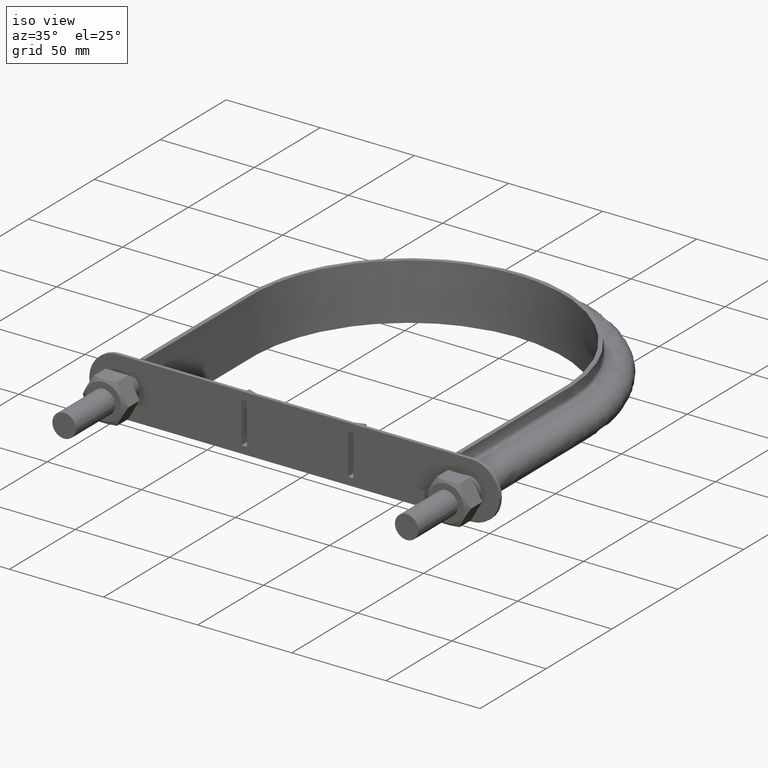
[diagram: clean part render]
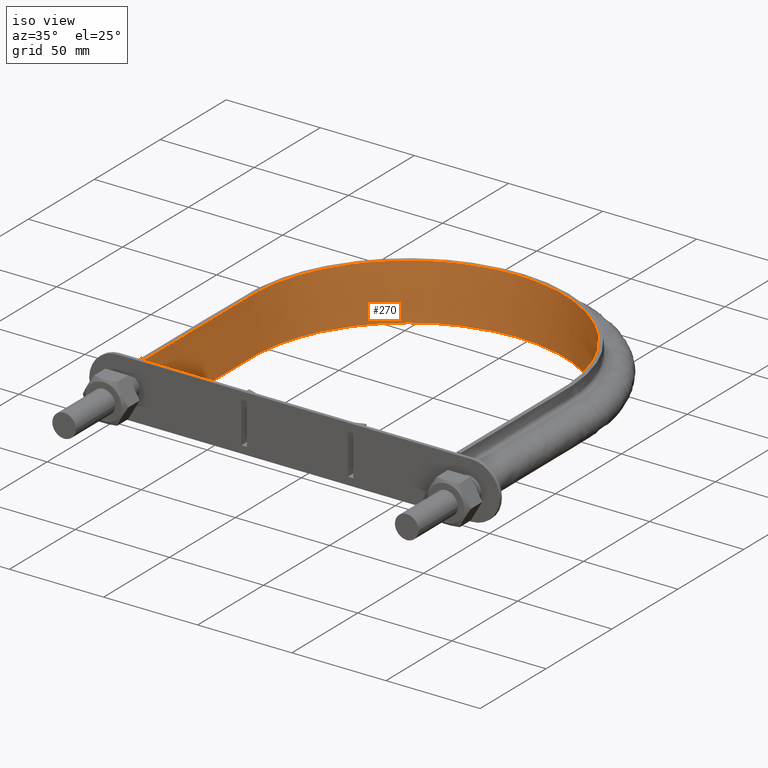
[diagram: same view with one face highlighted and labeled with its STEP entity id]
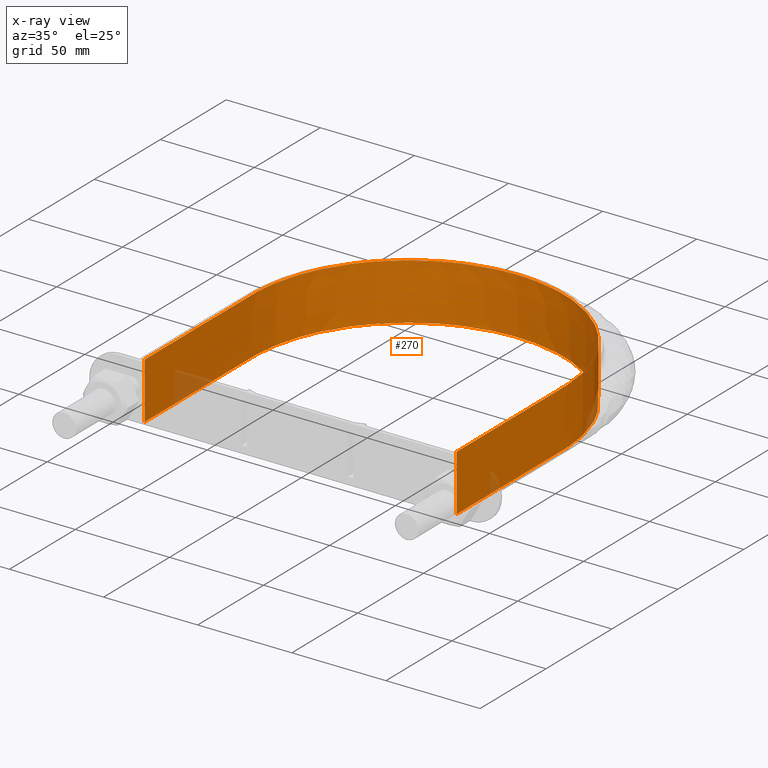
[diagram: x-ray of the same camera — body ghosted, the highlighted face saturated]
A machine part, iso view. The second image highlights one B-rep face of the part: STEP entity #270.
The next image is the same camera in x-ray: the body ghosted, the highlighted face saturated — about 3% of this face is hidden behind the body in this view.
In plain terms, the highlighted face is a SurfaceOfExtrusion surface.
Its self-contained STEP definition (entity closure, byte-faithful):
#270 = ADVANCED_FACE( '', ( #353 ), #354, .T. );
#353 = FACE_OUTER_BOUND( '', #540, .T. );
#354 = SURFACE_OF_LINEAR_EXTRUSION( '', #541, #542 );
#540 = EDGE_LOOP( '', ( #1641, #1642, #1643, #1644 ) );
#541 = B_SPLINE_CURVE_WITH_KNOTS( '', 3, ( #1645, #1646, #1647, #1648, #1649, #1650, #1651, #1652, #1653, #1654, #1655, #1656, #1657, #1658, #1659, #1660, #1661 ), .UNSPECIFIED., .F., .F., ( 4, 3, 1, 1, 1, 1, 1, 1, 1, 3, 4 ), ( -10.0000000000000, -9.00000000000000, -8.00000000000000, -7.00000000000000, -6.00000000000000, -5.00000000000000, -4.00000000000000, -3.00000000000000, -2.00000000000000, -1.00000000000000, 0.000000000000000 ), .UNSPECIFIED. );
#542 = VECTOR( '', #1662, 1000.00000000000 );
#1641 = ORIENTED_EDGE( '', *, *, #2207, .F. );
#1642 = ORIENTED_EDGE( '', *, *, #2196, .F. );
#1643 = ORIENTED_EDGE( '', *, *, #2200, .T. );
#1644 = ORIENTED_EDGE( '', *, *, #2204, .T. );
#1645 = CARTESIAN_POINT( '', ( -82.8500000000000, 49.5000000000001, -278.469308654335 ) );
#1646 = CARTESIAN_POINT( '', ( -82.8500000000000, 76.7166666666667, -278.469308654335 ) );
#1647 = CARTESIAN_POINT( '', ( -82.8500000000000, 103.933333333333, -278.469308654335 ) );
#1648 = CARTESIAN_POINT( '', ( -82.8500000000000, 131.150000000000, -278.469308654335 ) );
#1649 = CARTESIAN_POINT( '', ( -82.8500000000000, 141.979512005492, -278.469308654335 ) );
#1650 = CARTESIAN_POINT( '', ( -78.5361555605724, 163.687272457852, -278.469308654335 ) );
#1651 = CARTESIAN_POINT( '', ( -60.1089711493570, 191.257212617967, -278.469308654335 ) );
#1652 = CARTESIAN_POINT( '', ( -32.5307407698323, 209.686657998112, -278.469308654335 ) );
#1653 = CARTESIAN_POINT( '', ( 5.42262588885138E-014, 216.156671000944, -278.469308654335 ) );
#1654 = CARTESIAN_POINT( '', ( 32.5307407698323, 209.686657998112, -278.469308654335 ) );
#1655 = CARTESIAN_POINT( '', ( 60.1089711493571, 191.257212617967, -278.469308654335 ) );
#1656 = CARTESIAN_POINT( '', ( 78.5361555605725, 163.687272457852, -278.469308654335 ) );
#1657 = CARTESIAN_POINT( '', ( 82.8500000000000, 141.979512005492, -278.469308654335 ) );
#1658 = CARTESIAN_POINT( '', ( 82.8500000000000, 131.150000000000, -278.469308654335 ) );
#1659 = CARTESIAN_POINT( '', ( 82.8500000000000, 103.933333333333, -278.469308654335 ) );
#1660 = CARTESIAN_POINT( '', ( 82.8500000000000, 76.7166666666667, -278.469308654335 ) );
#1661 = CARTESIAN_POINT( '', ( 82.8500000000000, 49.5000000000000, -278.469308654335 ) );
#1662 = DIRECTION( '', ( 0.000000000000000, 0.000000000000000, 1.00000000000000 ) );
#2196 = EDGE_CURVE( '', #2367, #2368, #2369, .T. );
#2200 = EDGE_CURVE( '', #2367, #2375, #2376, .T. );
#2204 = EDGE_CURVE( '', #2375, #2382, #2383, .T. );
#2207 = EDGE_CURVE( '', #2368, #2382, #2387, .T. );
#2367 = VERTEX_POINT( '', #2673 );
#2368 = VERTEX_POINT( '', #2674 );
#2369 = LINE( '', #2675, #2676 );
#2375 = VERTEX_POINT( '', #2714 );
#2376 = B_SPLINE_CURVE_WITH_KNOTS( '', 3, ( #2715, #2716, #2717, #2718, #2719, #2720, #2721, #2722, #2723, #2724, #2725, #2726, #2727, #2728, #2729, #2730, #2731 ), .UNSPECIFIED., .F., .F., ( 4, 3, 1, 1, 1, 1, 1, 1, 1, 3, 4 ), ( -10.0000000000000, -9.00000000000000, -8.00000000000000, -7.00000000000000, -6.00000000000000, -5.00000000000000, -4.00000000000000, -3.00000000000000, -2.00000000000000, -1.00000000000000, 0.000000000000000 ), .UNSPECIFIED. );
#2382 = VERTEX_POINT( '', #2764 );
#2383 = LINE( '', #2765, #2766 );
#2387 = B_SPLINE_CURVE_WITH_KNOTS( '', 3, ( #2801, #2802, #2803, #2804, #2805, #2806, #2807, #2808, #2809, #2810, #2811, #2812, #2813, #2814, #2815, #2816, #2817 ), .UNSPECIFIED., .F., .F., ( 4, 3, 1, 1, 1, 1, 1, 1, 1, 3, 4 ), ( -10.0000000000000, -9.00000000000000, -8.00000000000000, -7.00000000000000, -6.00000000000000, -5.00000000000000, -4.00000000000000, -3.00000000000000, -2.00000000000000, -1.00000000000000, 0.000000000000000 ), .UNSPECIFIED. );
#2673 = CARTESIAN_POINT( '', ( -82.8499999999999, 49.5000000000003, -15.0000000000000 ) );
#2674 = CARTESIAN_POINT( '', ( -82.8499999999999, 49.5000000000003, 15.0000000000000 ) );
#2675 = CARTESIAN_POINT( '', ( -82.8500000000000, 49.5000000000001, -278.469308654335 ) );
#2676 = VECTOR( '', #3383, 1000.00000000000 );
#2714 = CARTESIAN_POINT( '', ( 82.8500000000000, 49.5000000000000, -15.0000000000000 ) );
#2715 = CARTESIAN_POINT( '', ( -82.8500000000000, 49.5000000000001, -15.0000000000000 ) );
#2716 = CARTESIAN_POINT( '', ( -82.8500000000000, 76.7166666666667, -15.0000000000000 ) );
#2717 = CARTESIAN_POINT( '', ( -82.8500000000000, 103.933333333333, -15.0000000000000 ) );
#2718 = CARTESIAN_POINT( '', ( -82.8500000000000, 131.150000000000, -15.0000000000000 ) );
#2719 = CARTESIAN_POINT( '', ( -82.8500000000000, 141.979512005492, -15.0000000000000 ) );
#2720 = CARTESIAN_POINT( '', ( -78.5361555605724, 163.687272457852, -15.0000000000000 ) );
#2721 = CARTESIAN_POINT( '', ( -60.1089711493570, 191.257212617967, -15.0000000000000 ) );
#2722 = CARTESIAN_POINT( '', ( -32.5307407698323, 209.686657998112, -15.0000000000000 ) );
#2723 = CARTESIAN_POINT( '', ( 5.42262588885138E-014, 216.156671000944, -15.0000000000000 ) );
#2724 = CARTESIAN_POINT( '', ( 32.5307407698323, 209.686657998112, -15.0000000000000 ) );
#2725 = CARTESIAN_POINT( '', ( 60.1089711493571, 191.257212617967, -15.0000000000000 ) );
#2726 = CARTESIAN_POINT( '', ( 78.5361555605725, 163.687272457852, -15.0000000000000 ) );
#2727 = CARTESIAN_POINT( '', ( 82.8500000000000, 141.979512005492, -15.0000000000000 ) );
#2728 = CARTESIAN_POINT( '', ( 82.8500000000000, 131.150000000000, -15.0000000000000 ) );
#2729 = CARTESIAN_POINT( '', ( 82.8500000000000, 103.933333333333, -15.0000000000000 ) );
#2730 = CARTESIAN_POINT( '', ( 82.8500000000000, 76.7166666666667, -15.0000000000000 ) );
#2731 = CARTESIAN_POINT( '', ( 82.8500000000000, 49.5000000000000, -15.0000000000000 ) );
#2764 = CARTESIAN_POINT( '', ( 82.8500000000002, 49.5000000000003, 15.0000000000000 ) );
#2765 = CARTESIAN_POINT( '', ( 82.8500000000000, 49.5000000000000, -278.469308654335 ) );
#2766 = VECTOR( '', #3387, 1000.00000000000 );
#2801 = CARTESIAN_POINT( '', ( -82.8500000000000, 49.5000000000001, 15.0000000000000 ) );
#2802 = CARTESIAN_POINT( '', ( -82.8500000000000, 76.7166666666667, 15.0000000000000 ) );
#2803 = CARTESIAN_POINT( '', ( -82.8500000000000, 103.933333333333, 15.0000000000000 ) );
#2804 = CARTESIAN_POINT( '', ( -82.8500000000000, 131.150000000000, 15.0000000000000 ) );
#2805 = CARTESIAN_POINT( '', ( -82.8500000000000, 141.979512005492, 15.0000000000000 ) );
#2806 = CARTESIAN_POINT( '', ( -78.5361555605724, 163.687272457852, 15.0000000000000 ) );
#2807 = CARTESIAN_POINT( '', ( -60.1089711493570, 191.257212617967, 15.0000000000000 ) );
#2808 = CARTESIAN_POINT( '', ( -32.5307407698323, 209.686657998112, 15.0000000000000 ) );
#2809 = CARTESIAN_POINT( '', ( 5.42262588885138E-014, 216.156671000944, 15.0000000000000 ) );
#2810 = CARTESIAN_POINT( '', ( 32.5307407698323, 209.686657998112, 15.0000000000000 ) );
#2811 = CARTESIAN_POINT( '', ( 60.1089711493571, 191.257212617967, 15.0000000000000 ) );
#2812 = CARTESIAN_POINT( '', ( 78.5361555605725, 163.687272457852, 15.0000000000000 ) );
#2813 = CARTESIAN_POINT( '', ( 82.8500000000000, 141.979512005492, 15.0000000000000 ) );
#2814 = CARTESIAN_POINT( '', ( 82.8500000000000, 131.150000000000, 15.0000000000000 ) );
#2815 = CARTESIAN_POINT( '', ( 82.8500000000000, 103.933333333333, 15.0000000000000 ) );
#2816 = CARTESIAN_POINT( '', ( 82.8500000000000, 76.7166666666667, 15.0000000000000 ) );
#2817 = CARTESIAN_POINT( '', ( 82.8500000000000, 49.5000000000000, 15.0000000000000 ) );
#3383 = DIRECTION( '', ( 0.000000000000000, 0.000000000000000, 1.00000000000000 ) );
#3387 = DIRECTION( '', ( 0.000000000000000, 0.000000000000000, 1.00000000000000 ) );